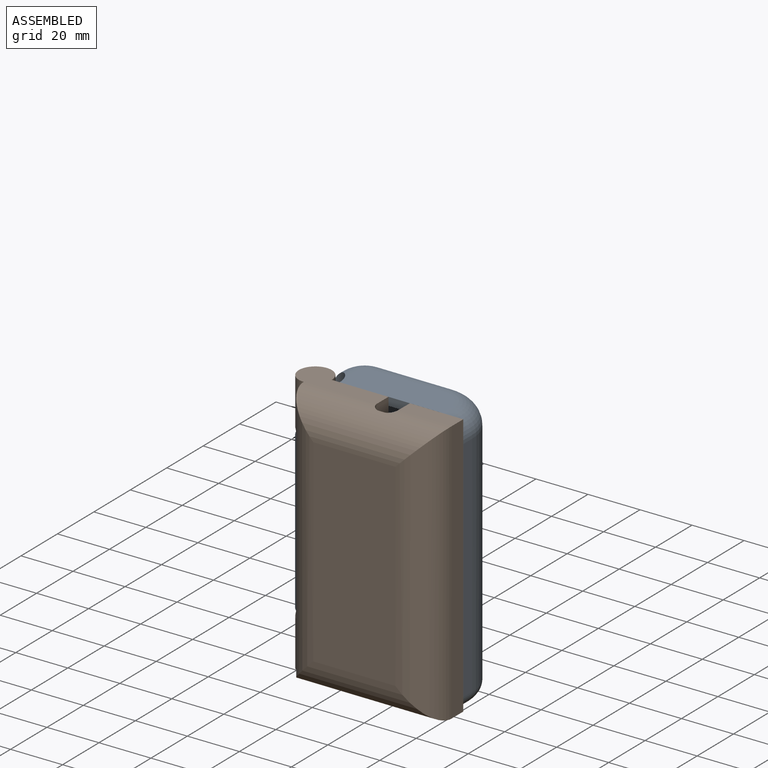
[diagram: assembled view]
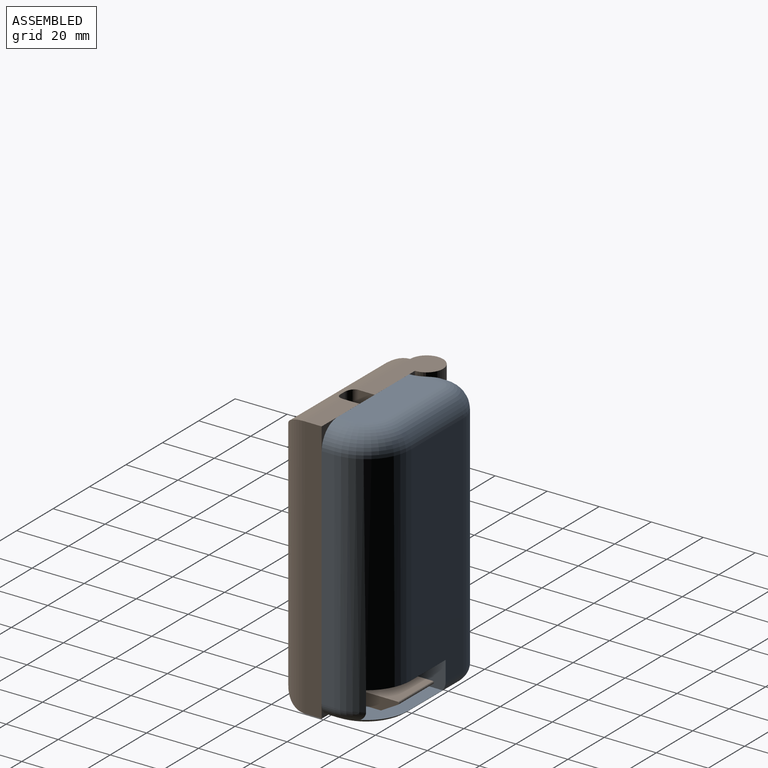
[diagram: assembled view, second angle]
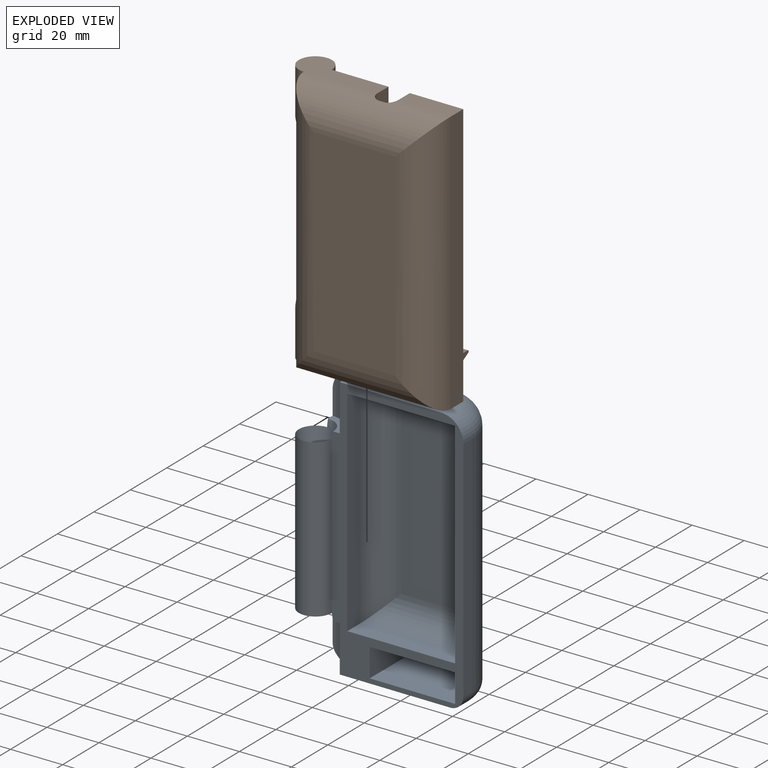
[diagram: exploded view]
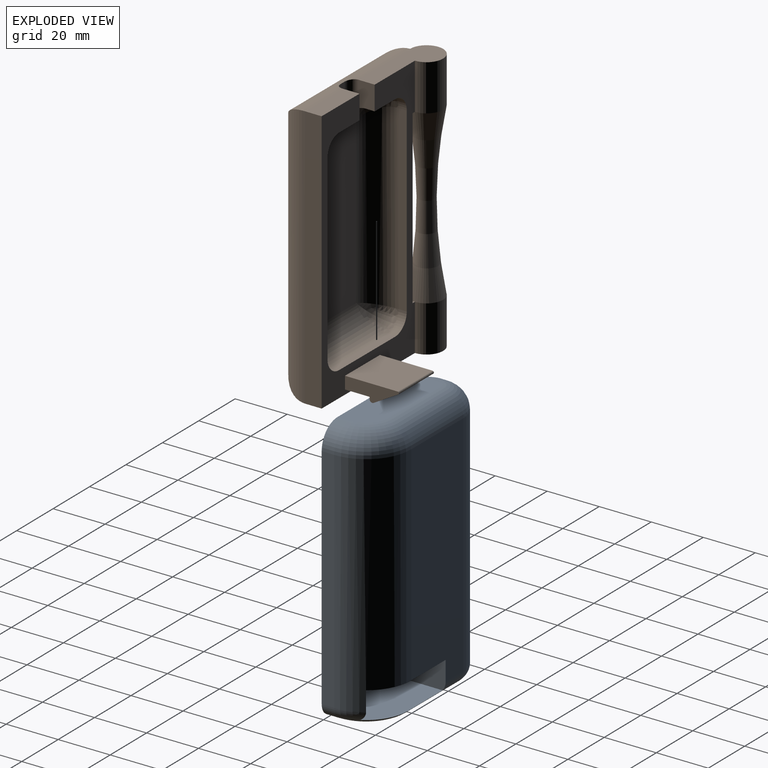
[diagram: exploded view, second angle]
ASSEMBLY  parts=2 mates=2
PART A: 37 faces, bbox 116.8x116.4x245.3 mm
  f0: plane 101.6x50.8mm, normal (0,1,0), area 1231.2mm2, adj f3,f4,f5,f6,f7,f8,f9,f10
  f1: plane 87.94x28.51mm, normal (0,-1,0), area 2363.7mm2, adj f12,f13,f25,f26,f29,f34
  f2: plane 87.94x4.59mm, normal (1,0,0), area 335.4mm2, adj f4,f7,f8,f9,f10,f11,f25,f27
  f3: plane 46.99x17.15mm, normal (0,0,-1), area 740.9mm2, adj f0,f11,f32,f33,f34,f35,f36
  f4: cylinder r=6.35mm len=60.48mm, axis (0,0,-1), area 1809.8mm2, adj f0,f2,f8
  f5: plane 87.94x4.87mm, normal (-1,0,0), area 428.3mm2, adj f0,f26,f31,f32
  f6: plane 39.98x13.64mm, normal (0,0,1), area 525.1mm2, adj f0,f10,f27,f28,f29,f30,f31
  f7: plane 9.41x9.41mm, normal (0,0,1), area 32.5mm2, adj f0,f2,f8,f10
  f8: torus R=176.45mm, axis (0,0,-1), area 1805.4mm2, adj f0,f2,f4,f7,f9
  f9: plane 9.41x9.41mm, normal (0,0,-1), area 32.5mm2, adj f0,f2,f8,f11
  f10: cylinder r=9.41mm len=17.78mm, axis (0,0,-1), area 246.2mm2, adj f0,f2,f6,f7,f27
  f11: cylinder r=9.41mm len=17.78mm, axis (0,0,-1), area 257.1mm2, adj f0,f2,f3,f9,f36
  f12: plane 33.02x22.23mm, normal (0,0,-1), area 702.7mm2, adj f0,f1,f13,f15,f26
  f13: plane 22.23x10.92mm, normal (-1,0,0), area 241.5mm2, adj f0,f1,f12,f14,f34
  f14: plane 33.02x21.01mm, normal (0,0,1), area 659.1mm2, adj f0,f13,f15,f33,f34
  f15: plane 14.88x10.92mm, normal (1,0,0), area 160.2mm2, adj f0,f12,f14,f26,f33
  f16: plane 41.65x6.35mm, normal (0,0,-1), area 264.5mm2, adj f0,f17,f19,f21
  f17: plane 82.55x6.35mm, normal (-1,0,0), area 524.2mm2, adj f0,f16,f18,f22
  f18: plane 41.65x6.35mm, normal (0,0,1), area 264.5mm2, adj f0,f17,f19,f24
  f19: plane 82.55x6.35mm, normal (1,0,0), area 524.2mm2, adj f0,f16,f18,f23
  f20: plane 63.5x22.6mm, normal (0,1,0), area 1434.9mm2, adj f21,f22,f23,f24
  f21: cylinder r=9.53mm len=41.65mm, axis (1,0,0), area 519.5mm2, adj f16,f20,f22,f23
  f22: cylinder r=9.53mm len=82.55mm, axis (0,0,-1), area 1131.5mm2, adj f17,f20,f21,f24
  f23: cylinder r=9.53mm len=82.55mm, axis (0,0,1), area 1131.5mm2, adj f19,f20,f21,f24
  f24: cylinder r=9.53mm len=41.65mm, axis (-1,0,0), area 519.5mm2, adj f18,f20,f22,f23
  f25: cylinder r=11.28mm len=87.94mm, axis (0,0,-1), area 1558.5mm2, adj f1,f2,f28,f35
  f26: cylinder r=17.35mm len=87.94mm, axis (0,0,1), area 2270.6mm2, adj f1,f5,f12,f15,f30,f33
  f27: cylinder r=8.58mm len=8.59mm, axis (0,-1,0), area 34.9mm2, adj f2,f6,f10,f28
  f28: torus R=2.7mm, axis (0,0,1), area 172.9mm2, adj f6,f25,f27,f29
  f29: cylinder r=8.58mm len=28.51mm, axis (-1,0,0), area 384.5mm2, adj f1,f6,f28,f30
  f30: torus R=8.77mm, axis (0,0,1), area 301.5mm2, adj f6,f26,f29,f31
  f31: cylinder r=8.58mm len=8.59mm, axis (0,1,0), area 65.7mm2, adj f0,f5,f6,f30
  f32: cylinder r=5.08mm len=5.08mm, axis (0,-1,0), area 38.9mm2, adj f0,f3,f5,f33
  f33: torus R=12.27mm, axis (0,0,1), area 133.9mm2, adj f3,f14,f15,f26,f32,f34
  f34: cylinder r=5.08mm len=28.51mm, axis (1,0,0), area 159.8mm2, adj f1,f3,f13,f14,f33,f35
  f35: torus R=6.2mm, axis (0,0,1), area 118.3mm2, adj f3,f25,f34,f36
  f36: cylinder r=5.08mm len=5.08mm, axis (0,1,0), area 14.8mm2, adj f2,f3,f11,f35
PART B: 47 faces, bbox 115.7x115.7x246.1 mm
  f0: plane 34.61x12.7mm, normal (0,0,-1), area 274.4mm2, adj f2,f3,f30,f45
  f1: plane 11.11x3.18mm, normal (0,0,1), area 35.3mm2, adj f2,f26,f31,f36
  f2: plane 101.6x50.8mm, normal (0,1,0), area 1380mm2, adj f0,f1,f3,f4,f5,f7,f8,f9
  f3: cylinder r=6.35mm len=17.78mm, axis (0,0,-1), area 532mm2, adj f0,f2,f12,f43
  f4: cylinder r=6.35mm len=17.78mm, axis (0,0,-1), area 532mm2, adj f2,f7,f12,f43
  f5: plane 101.6x6.35mm, normal (-1,0,0), area 645.2mm2, adj f2,f7,f8,f46
  f6: plane 76.2x31.75mm, normal (0,-1,0), area 2419.3mm2, adj f43,f44,f45,f46
  f7: plane 63.5x12.7mm, normal (0,0,1), area 457.9mm2, adj f2,f4,f5,f44
  f8: plane 20.64x6.35mm, normal (0,0,-1), area 131mm2, adj f2,f5,f31,f45
  f9: plane 7.62x7.62mm, normal (0,0,1), area 13.9mm2, adj f2,f11,f12,f43
  f10: plane 7.62x7.62mm, normal (0,0,-1), area 13.9mm2, adj f2,f11,f12,f43
  f11: cylinder r=7.62mm len=66.04mm, axis (0,0,1), area 786.3mm2, adj f2,f9,f10,f43
  f12: torus R=176.47mm, axis (0,0,1), area 1767.9mm2, adj f3,f4,f9,f10
  f13: plane 19.05x9.53mm, normal (0,0,1), area 181.5mm2, adj f2,f14,f16,f19
  f14: plane 20.84x6.59mm, normal (1,0,0), area 90.6mm2, adj f2,f13,f15,f17,f18,f19,f20
  f15: plane 20.33x19.05mm, normal (0,0,-1), area 387.3mm2, adj f2,f14,f16,f20
  f16: plane 20.84x6.59mm, normal (-1,0,0), area 90.6mm2, adj f2,f13,f15,f17,f18,f19,f20
  f17: cylinder r=1.02mm len=19.05mm, axis (-1,0,0), area 40.5mm2, adj f14,f16,f18,f19
  f18: plane 19.05x9.53mm, normal (0,0.5,0.87), area 209.7mm2, adj f14,f16,f17,f20
  f19: plane 19.05x0.81mm, normal (0,-1,0), area 15.4mm2, adj f13,f14,f16,f17
  f20: cylinder r=0.51mm len=19.05mm, axis (-1,0,0), area 25.3mm2, adj f14,f15,f16,f18
  f21: plane 30.48x3.18mm, normal (0,0,-1), area 96.8mm2, adj f2,f22,f28,f37
  f22: cylinder r=6.35mm len=6.35mm, axis (0,1,0), area 31.7mm2, adj f2,f21,f23,f35
  f23: plane 69.85x3.18mm, normal (-1,0,0), area 221.8mm2, adj f2,f22,f24,f33
  f24: cylinder r=6.35mm len=6.35mm, axis (0,1,0), area 31.7mm2, adj f2,f23,f25,f34
  f25: plane 11.11x3.18mm, normal (0,0,1), area 35.3mm2, adj f2,f24,f30,f36
  f26: cylinder r=6.35mm len=6.35mm, axis (0,1,0), area 31.7mm2, adj f1,f2,f27,f38
  f27: plane 69.85x3.18mm, normal (1,0,0), area 221.8mm2, adj f2,f26,f28,f40
  f28: cylinder r=6.35mm len=6.35mm, axis (0,1,0), area 31.7mm2, adj f2,f21,f27,f39
  f29: plane 63.5x24.13mm, normal (0,1,0), area 1532.3mm2, adj f33,f36,f37,f40
  f30: plane 9.84x6.35mm, normal (-1,0,0), area 59.6mm2, adj f0,f2,f25,f36,f42
  f31: plane 9.84x6.35mm, normal (1,0,0), area 59.6mm2, adj f1,f2,f8,f36,f41
  f32: plane 11.32x1.91mm, normal (0,1,0), area 21.6mm2, adj f36,f41,f42,f45
  f33: cylinder r=9.53mm len=69.85mm, axis (0,0,-1), area 1010.6mm2, adj f23,f29,f34,f35
  f34: bspline ~11.58x9.53mm, area 98.2mm2, adj f24,f33,f36
  f35: bspline ~11.58x9.53mm, area 98.2mm2, adj f22,f33,f37
  f36: cylinder r=9.53mm len=30.48mm, axis (-1,0,0), area 369.5mm2, adj f1,f25,f29,f30,f31,f32,f34,f38
  f37: cylinder r=9.53mm len=30.48mm, axis (1,0,0), area 421.5mm2, adj f21,f29,f35,f39
  f38: bspline ~11.58x9.53mm, area 98.2mm2, adj f26,f36,f40
  f39: bspline ~11.58x9.53mm, area 98.2mm2, adj f28,f37,f40
  f40: cylinder r=9.53mm len=69.85mm, axis (0,0,1), area 1010.6mm2, adj f27,f29,f38,f39
  f41: cylinder r=3.17mm len=11.72mm, axis (0,0,1), area 53.5mm2, adj f31,f32,f36,f45
  f42: cylinder r=3.17mm len=11.72mm, axis (0,0,-1), area 53.5mm2, adj f30,f32,f36,f45
  f43: cylinder r=12.7mm len=101.6mm, axis (0,0,-1), area 1758.7mm2, adj f3,f4,f6,f9,f10,f11,f44,f45
  f44: cylinder r=12.7mm len=57.15mm, axis (-1,0,0), area 956mm2, adj f6,f7,f43,f46
  f45: cylinder r=12.7mm len=57.15mm, axis (1,0,0), area 933.9mm2, adj f0,f6,f8,f32,f41,f42,f43,f46
  f46: cylinder r=12.7mm len=101.6mm, axis (0,0,1), area 1842.7mm2, adj f5,f6,f44,f45
PLACE A rot(axis=(0,0,1),179.7deg) t=(-74.08,-38.18,-25.31)mm fixed
PLACE B rot(axis=(0,1,0),180deg) t=(-74.08,-38.18,76.29)mm
MATE planar B.f0 <-> A.f6  axis (0,0,1) through (-56.77,-38.29,76.29)mm
MATE cylindrical A.f4 <-> B.f11  axis (0,0,-1) through (-74.08,-38.18,-7.53)mm
